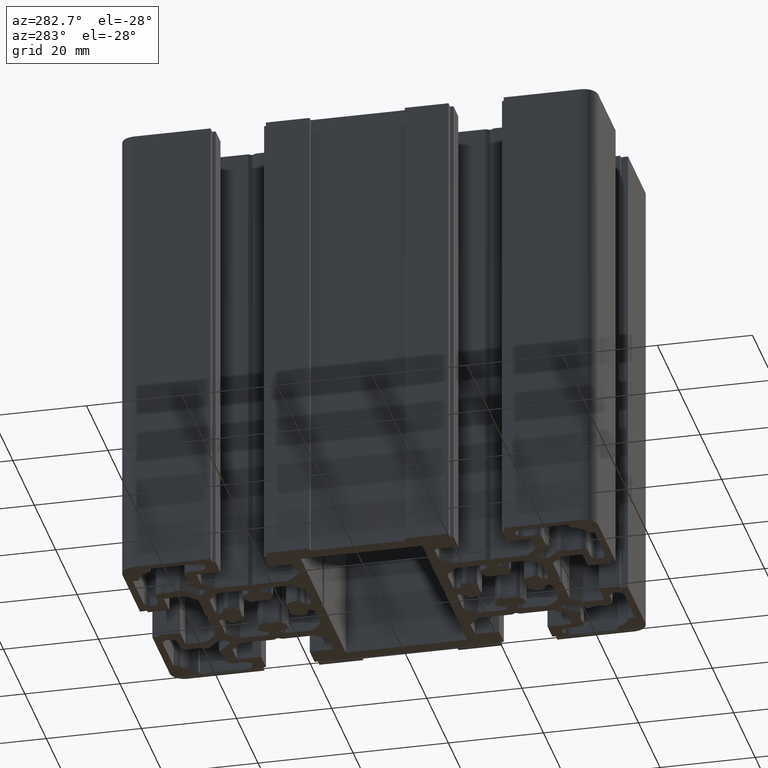
[diagram: clean part render]
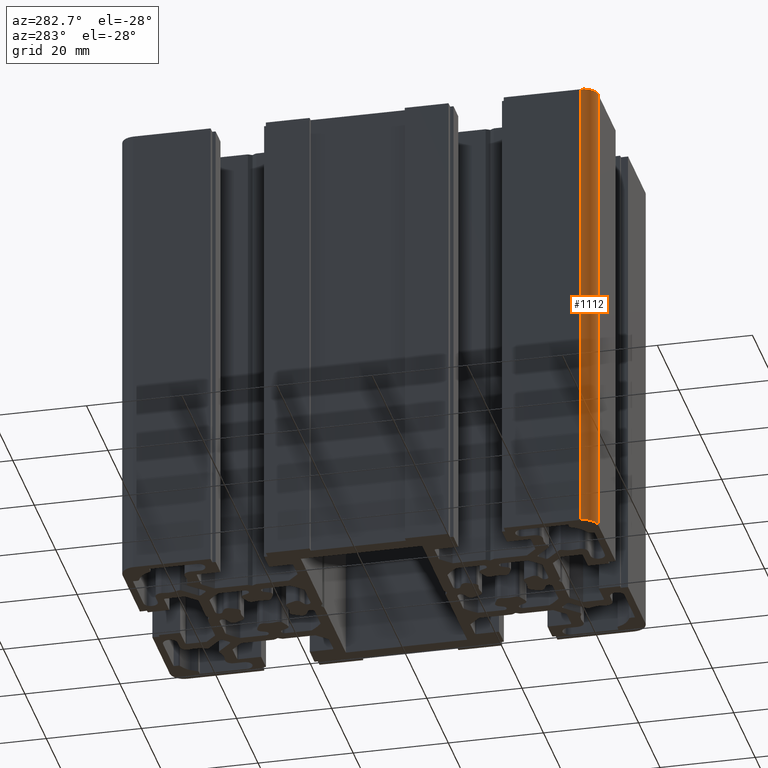
[diagram: same view with one face highlighted and labeled with its STEP entity id]
A machine part, auxiliary view. The second image highlights one B-rep face of the part: STEP entity #1112.
In plain terms, the highlighted cylindrical surface (edge-blend (fillet) strip) has radius 3 mm, axis along (-0, -0, -1).
Its self-contained STEP definition (entity closure, byte-faithful):
#206 = VERTEX_POINT ( 'NONE', #5109 ) ;
#463 = EDGE_CURVE ( 'NONE', #206, #478, #5570, .T. ) ;
#478 = VERTEX_POINT ( 'NONE', #5646 ) ;
#1106 = ORIENTED_EDGE ( 'NONE', *, *, #3288, .F. ) ;
#1109 = ORIENTED_EDGE ( 'NONE', *, *, #1115, .F. ) ;
#1110 = EDGE_LOOP ( 'NONE', ( #1123, #1109, #1106, #1159 ) ) ;
#1112 = ADVANCED_FACE ( 'NONE', ( #6645 ), #6618, .T. ) ;
#1115 = EDGE_CURVE ( 'NONE', #3287, #478, #6681, .T. ) ;
#1123 = ORIENTED_EDGE ( 'NONE', *, *, #463, .T. ) ;
#1126 = EDGE_CURVE ( 'NONE', #3290, #206, #6670, .T. ) ;
#1159 = ORIENTED_EDGE ( 'NONE', *, *, #1126, .T. ) ;
#3287 = VERTEX_POINT ( 'NONE', #9715 ) ;
#3288 = EDGE_CURVE ( 'NONE', #3290, #3287, #9759, .T. ) ;
#3290 = VERTEX_POINT ( 'NONE', #9761 ) ;
#5109 = CARTESIAN_POINT ( 'NONE',  ( -24.99999999999993600, -47.00000000000022000, 0.0000000000000000000 ) ) ;
#5570 = CIRCLE ( 'NONE', #5579, 2.999999999999999100 ) ;
#5576 = CARTESIAN_POINT ( 'NONE',  ( -21.99999999999993600, -47.00000000000022000, 0.0000000000000000000 ) ) ;
#5579 = AXIS2_PLACEMENT_3D ( 'NONE', #5576, #5623, #5622 ) ;
#5622 = DIRECTION ( 'NONE',  ( 1.000000000000000000, 0.0000000000000000000, 0.0000000000000000000 ) ) ;
#5623 = DIRECTION ( 'NONE',  ( 0.0000000000000000000, 0.0000000000000000000, 1.000000000000000000 ) ) ;
#5646 = CARTESIAN_POINT ( 'NONE',  ( -22.00000000000000000, -50.00000000000022000, 0.0000000000000000000 ) ) ;
#6618 = CYLINDRICAL_SURFACE ( 'NONE', #6650, 2.999999999999999100 ) ;
#6645 = FACE_OUTER_BOUND ( 'NONE', #1110, .T. ) ;
#6650 = AXIS2_PLACEMENT_3D ( 'NONE', #6691, #6690, #6689 ) ;
#6668 = VECTOR ( 'NONE', #6728, 1000.000000000000000 ) ;
#6669 = CARTESIAN_POINT ( 'NONE',  ( -24.99999999999993600, -47.00000000000022000, 100.0000000000000000 ) ) ;
#6670 = LINE ( 'NONE', #6669, #6668 ) ;
#6678 = DIRECTION ( 'NONE',  ( -0.0000000000000000000, -0.0000000000000000000, -1.000000000000000000 ) ) ;
#6679 = VECTOR ( 'NONE', #6678, 1000.000000000000000 ) ;
#6680 = CARTESIAN_POINT ( 'NONE',  ( -22.00000000000000000, -50.00000000000022000, 100.0000000000000000 ) ) ;
#6681 = LINE ( 'NONE', #6680, #6679 ) ;
#6689 = DIRECTION ( 'NONE',  ( -1.000000000000000000, 0.0000000000000000000, 0.0000000000000000000 ) ) ;
#6690 = DIRECTION ( 'NONE',  ( -0.0000000000000000000, -0.0000000000000000000, -1.000000000000000000 ) ) ;
#6691 = CARTESIAN_POINT ( 'NONE',  ( -21.99999999999993600, -47.00000000000022000, 100.0000000000000000 ) ) ;
#6728 = DIRECTION ( 'NONE',  ( -0.0000000000000000000, -0.0000000000000000000, -1.000000000000000000 ) ) ;
#9715 = CARTESIAN_POINT ( 'NONE',  ( -22.00000000000000000, -50.00000000000022000, 100.0000000000000000 ) ) ;
#9754 = DIRECTION ( 'NONE',  ( 1.000000000000000000, 0.0000000000000000000, 0.0000000000000000000 ) ) ;
#9755 = DIRECTION ( 'NONE',  ( 0.0000000000000000000, 0.0000000000000000000, 1.000000000000000000 ) ) ;
#9756 = CARTESIAN_POINT ( 'NONE',  ( -21.99999999999993600, -47.00000000000022000, 100.0000000000000000 ) ) ;
#9757 = AXIS2_PLACEMENT_3D ( 'NONE', #9756, #9755, #9754 ) ;
#9759 = CIRCLE ( 'NONE', #9757, 2.999999999999999100 ) ;
#9761 = CARTESIAN_POINT ( 'NONE',  ( -24.99999999999993600, -47.00000000000022000, 100.0000000000000000 ) ) ;